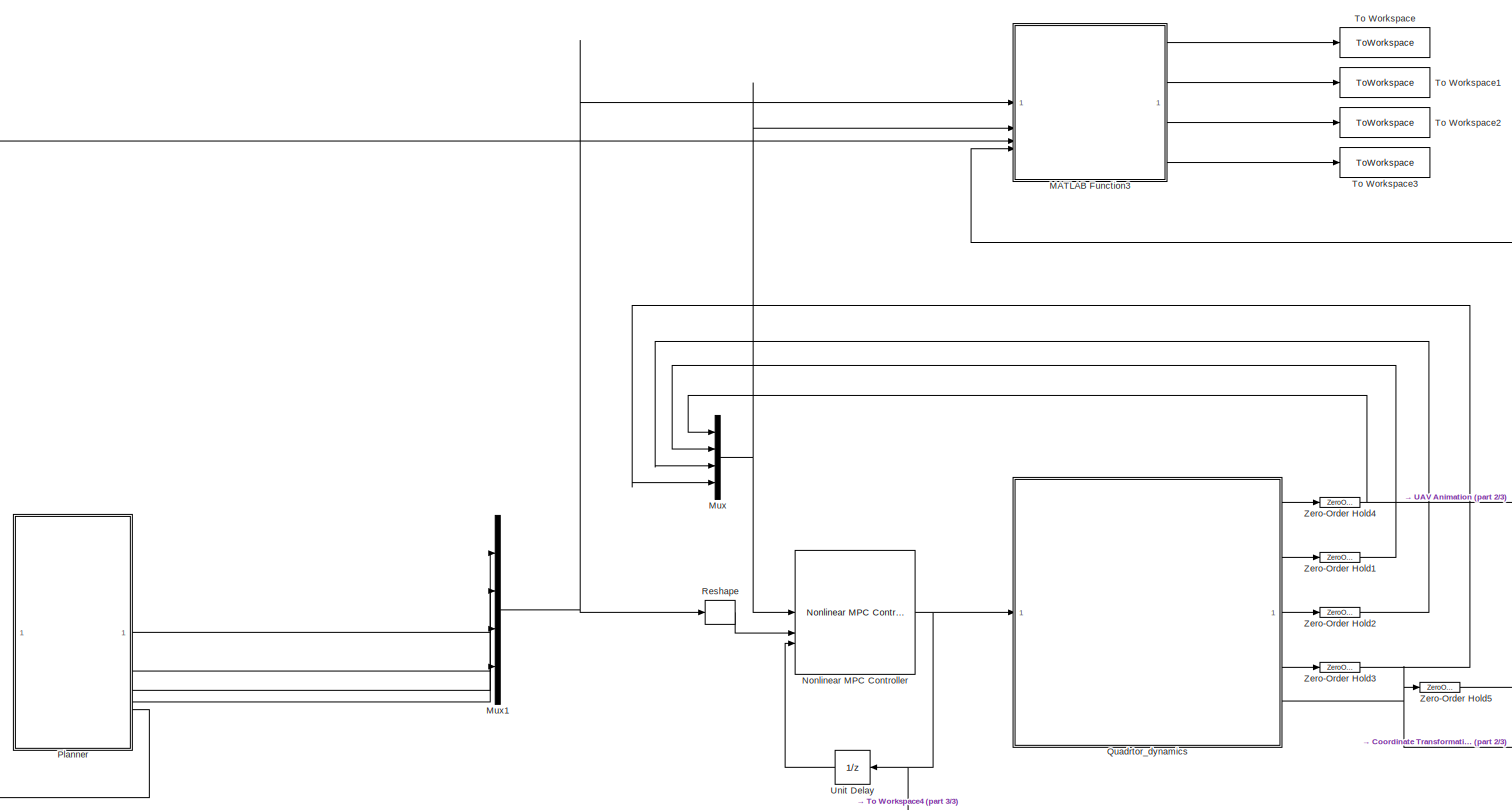
[diagram: root canvas - part 1/3, center side, full height]
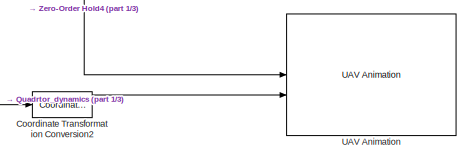
[diagram: root canvas - part 2/3, bottom right region]
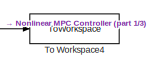
[diagram: root canvas - part 3/3, bottom center region]
MODEL slx_e75ed714f80a
KIND model
CONFIG AbsTol = auto
CONFIG EnableMultiTasking = off
CONFIG FixedStep = auto
CONFIG InitFcn = addpath('TRAJECTORIES\');\nsquare_tilting\n%circular_coplanar
CONFIG MaxStep = auto
CONFIG MinStep = auto
CONFIG PreLoadFcn = mainNMPC
CONFIG RelTol = 1e-3
CONFIG SampleTimeConstraint = Unconstrained
CONFIG SolverName = VariableStepAuto
CONFIG StartFcn = %% Setup Video e Timer\nvideoFile = 'NMPC_quad.avi';\n%videoFile = 'NMPC_circ.avi';\nvideoObj = VideoWriter(videoFile);\nvideoObj.FrameRate = 30;\nopen(videoObj);\nassignin('base','videoObj',videoObj);\n \n \nt = timer('ExecutionMode','fixedSpacing','Period',0.05,'StartDelay',2,...\n          'TimerFcn',@(~,~) captureFrame(findall(0,'Type','figure','Name','UAV Animation'), videoObj));\nstart(t);\n \n \nassignin...<+24ch>
CONFIG StartTime = 0.0
CONFIG StopFcn = % Default graphics settings\nset(0, 'DefaultTextInterpreter', 'latex')\nset(0, 'DefaultLegendInterpreter', 'latex')\nset(0, 'DefaultAxesTickLabelInterpreter', 'latex')\nlw = 2;\nplot_errors = figure('Renderer', 'painters', 'Position', [10 10 900 650]);    \nsubplot(2,1,1)\nplot(out.err_p.time, out.err_p.signals.values(1,:), 'k-', 'Linewidth', lw ,'Color', [0.2, 0.2, 0.2]);\nhold on\nplot(out.err_p.time, ou...<+3073ch>
CONFIG StopTime = tot_time
BLOCK [Reference] Coordinate Transformation Conversion2  REF=robotcorelib/Coordinate Transformation Conversion
  LibrarySourceBlock = robotutilslib/Coordinate Transformation Conversion
  SourceBlock = robotcorelib/Coordinate Transformation Conversion
  SourceType = robotics.slcore.internal.block.CoordinateTransformationConversion
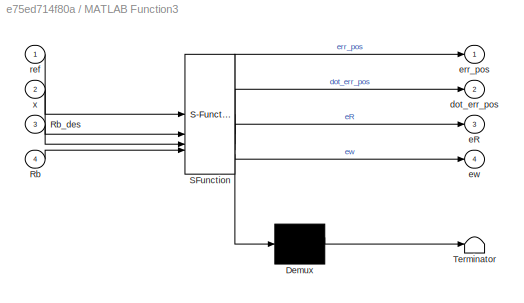
BLOCK [SubSystem] MATLAB Function3
  ErrorFcn = Stateflow.Translate.translate
  PermitHierarchicalResolution = ExplicitOnly
  SFBlockType = MATLAB Function
  TreatAsAtomicUnit = on
BLOCK [Demux] MATLAB Function3/ Demux 
  Outputs = 1
BLOCK [S-Function] MATLAB Function3/ SFunction 
  EnableBusSupport = on
  FunctionName = sf_sfun
  PortCounts = [4 5]
  SFcnIsStateOwnerBlock = off
  SFunctionDeploymentMode = off
  Tag = Stateflow S-Function 1
BLOCK [Terminator] MATLAB Function3/ Terminator 
BLOCK [Inport] MATLAB Function3/Rb
  Port = 4
BLOCK [Inport] MATLAB Function3/Rb_des
  Port = 3
BLOCK [Outport] MATLAB Function3/dot_err_pos
  Port = 2
BLOCK [Outport] MATLAB Function3/eR
  Port = 3
BLOCK [Outport] MATLAB Function3/err_pos
BLOCK [Outport] MATLAB Function3/ew
  Port = 4
BLOCK [Inport] MATLAB Function3/ref
BLOCK [Inport] MATLAB Function3/x
  Port = 2
BLOCK [Mux] Mux
  DisplayOption = bar
  Inputs = [3, 3, 3, 3]
BLOCK [Mux] Mux1
  DisplayOption = bar
  Inputs = [3, 3, 3, 3]
BLOCK [Reference] Nonlinear MPC Controller  REF=mpclib/Nonlinear MPC Controller  (lib defined in mdl_ae329e0e0455)
  SourceBlock = mpclib/Nonlinear MPC Controller
  SourceType = NonlinearMPC
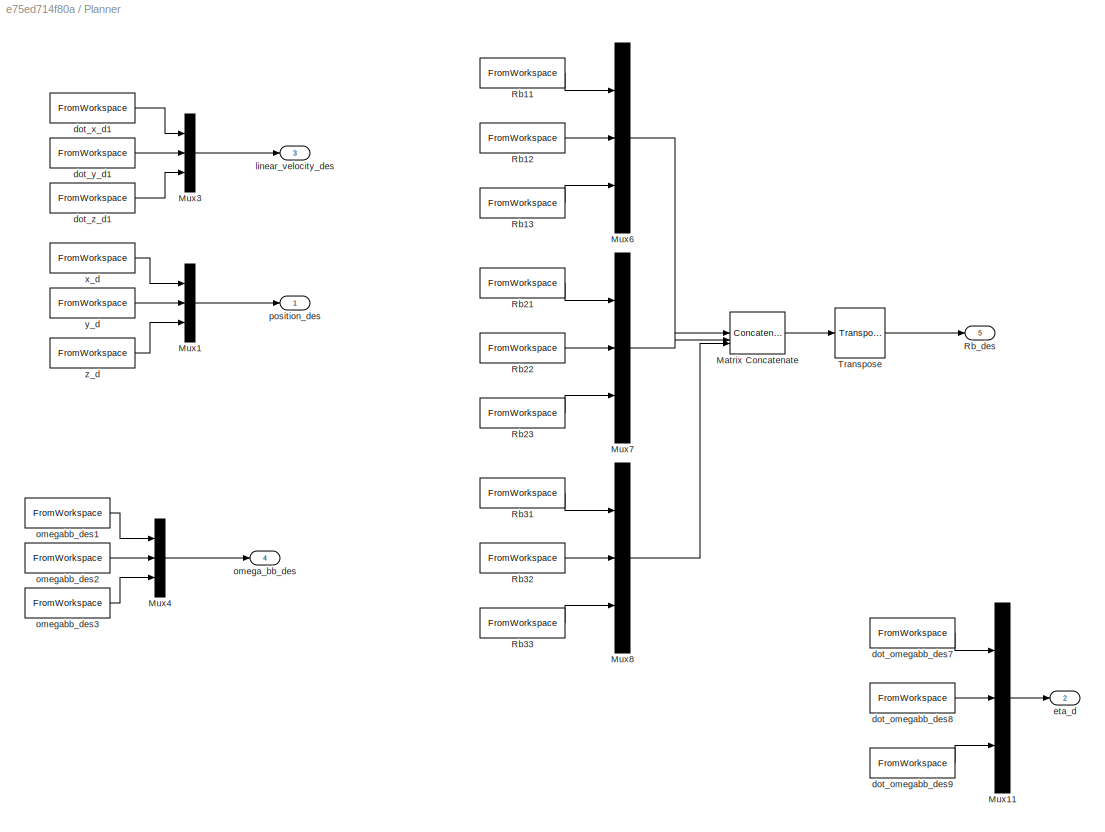
BLOCK [SubSystem] Planner
BLOCK [Concatenate] Planner/Matrix Concatenate
  ConcatenateDimension = 2
  Mode = Multidimensional array
  NumInputs = 3
BLOCK [Mux] Planner/Mux1
  DisplayOption = bar
  Inputs = 3
BLOCK [Mux] Planner/Mux11
  DisplayOption = bar
  Inputs = 3
BLOCK [Mux] Planner/Mux3
  DisplayOption = bar
  Inputs = 3
BLOCK [Mux] Planner/Mux4
  DisplayOption = bar
  Inputs = 3
BLOCK [Mux] Planner/Mux6
  DisplayOption = bar
  Inputs = 3
BLOCK [Mux] Planner/Mux7
  DisplayOption = bar
  Inputs = 3
BLOCK [Mux] Planner/Mux8
  DisplayOption = bar
  Inputs = 3
BLOCK [FromWorkspace] Planner/Rb11
  SampleTime = Ts
  VariableName = [t' squeeze(Rbdes(1,1,:))]
BLOCK [FromWorkspace] Planner/Rb12
  SampleTime = Ts
  VariableName = [t' squeeze(Rbdes(1,2,:))]
BLOCK [FromWorkspace] Planner/Rb13
  SampleTime = Ts
  VariableName = [t' squeeze(Rbdes(1,3,:))]
BLOCK [FromWorkspace] Planner/Rb21
  SampleTime = Ts
  VariableName = [t' squeeze(Rbdes(2,1,:))]
BLOCK [FromWorkspace] Planner/Rb22
  SampleTime = Ts
  VariableName = [t' squeeze(Rbdes(2,2,:))]
BLOCK [FromWorkspace] Planner/Rb23
  SampleTime = Ts
  VariableName = [t' squeeze(Rbdes(2,3,:))]
BLOCK [FromWorkspace] Planner/Rb31
  SampleTime = Ts
  VariableName = [t' squeeze(Rbdes(3,1,:))]
BLOCK [FromWorkspace] Planner/Rb32
  SampleTime = Ts
  VariableName = [t' squeeze(Rbdes(3,2,:))]
BLOCK [FromWorkspace] Planner/Rb33
  SampleTime = Ts
  VariableName = [t' squeeze(Rbdes(3,3,:))]
BLOCK [Outport] Planner/Rb_des
  Port = 5
BLOCK [Reference] Planner/Transpose  REF=matrix_library/Transpose
  LibrarySourceBlock = simulink/Matrix\nOperations/Transpose
  SourceBlock = matrix_library/Transpose
  SourceType = Transpose
BLOCK [FromWorkspace] Planner/dot_omegabb_des7
  SampleTime = Ts
  VariableName = [t' phi_d']
BLOCK [FromWorkspace] Planner/dot_omegabb_des8
  SampleTime = Ts
  VariableName = [t' theta_d']
BLOCK [FromWorkspace] Planner/dot_omegabb_des9
  SampleTime = Ts
  VariableName = [t' psi_d']
BLOCK [FromWorkspace] Planner/dot_x_d1
  SampleTime = Ts
  VariableName = [t' dot_csi_d(1,:)']
BLOCK [FromWorkspace] Planner/dot_y_d1
  SampleTime = Ts
  VariableName = [t' dot_csi_d(2,:)']
BLOCK [FromWorkspace] Planner/dot_z_d1
  SampleTime = Ts
  VariableName = [t' dot_csi_d(3,:)']
BLOCK [Outport] Planner/eta_d
  Port = 2
BLOCK [Outport] Planner/linear_velocity_des
  Port = 3
BLOCK [Outport] Planner/omega_bb_des
  Port = 4
BLOCK [FromWorkspace] Planner/omegabb_des1
  SampleTime = Ts
  VariableName = [t' omegabb_des(1,:)']
BLOCK [FromWorkspace] Planner/omegabb_des2
  SampleTime = Ts
  VariableName = [t' omegabb_des(2,:)']
BLOCK [FromWorkspace] Planner/omegabb_des3
  SampleTime = Ts
  VariableName = [t' omegabb_des(3,:)']
BLOCK [Outport] Planner/position_des
BLOCK [FromWorkspace] Planner/x_d
  SampleTime = Ts
  VariableName = [t' csi_d(1,:)']
BLOCK [FromWorkspace] Planner/y_d
  SampleTime = Ts
  VariableName = [t' csi_d(2,:)']
BLOCK [FromWorkspace] Planner/z_d
  SampleTime = Ts
  VariableName = [t' csi_d(3,:)']
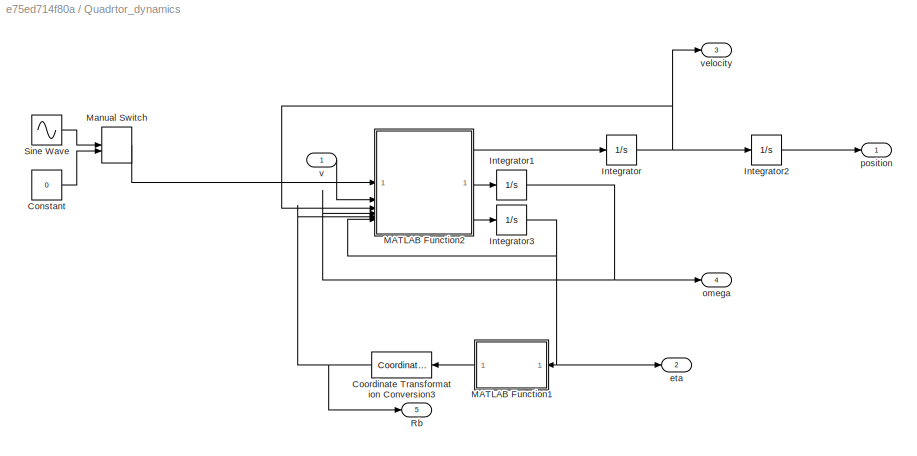
BLOCK [SubSystem] Quadrtor_dynamics
BLOCK [Constant] Quadrtor_dynamics/Constant
  Value = 0
BLOCK [Reference] Quadrtor_dynamics/Coordinate Transformation Conversion3  REF=robotcorelib/Coordinate Transformation Conversion
  LibrarySourceBlock = robotutilslib/Coordinate Transformation Conversion
  NameLocation = top
  SourceBlock = robotcorelib/Coordinate Transformation Conversion
  SourceType = robotics.slcore.internal.block.CoordinateTransformationConversion
BLOCK [Integrator] Quadrtor_dynamics/Integrator
  InitialCondition = [0 0 0]'
BLOCK [Integrator] Quadrtor_dynamics/Integrator1
  InitialCondition = [0 0 0]'
BLOCK [Integrator] Quadrtor_dynamics/Integrator2
  InitialCondition = [0 0 -1]'
BLOCK [Integrator] Quadrtor_dynamics/Integrator3
  InitialCondition = [0 0 0]'
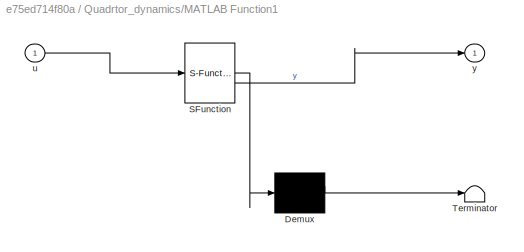
BLOCK [SubSystem] Quadrtor_dynamics/MATLAB Function1
  ErrorFcn = Stateflow.Translate.translate
  NameLocation = top
  PermitHierarchicalResolution = ExplicitOnly
  SFBlockType = MATLAB Function
  TreatAsAtomicUnit = on
BLOCK [Demux] Quadrtor_dynamics/MATLAB Function1/ Demux 
  Outputs = 1
BLOCK [S-Function] Quadrtor_dynamics/MATLAB Function1/ SFunction 
  EnableBusSupport = on
  FunctionName = sf_sfun
  PortCounts = [1 2]
  SFcnIsStateOwnerBlock = off
  SFunctionDeploymentMode = off
  Tag = Stateflow S-Function 2
BLOCK [Terminator] Quadrtor_dynamics/MATLAB Function1/ Terminator 
BLOCK [Inport] Quadrtor_dynamics/MATLAB Function1/u
BLOCK [Outport] Quadrtor_dynamics/MATLAB Function1/y
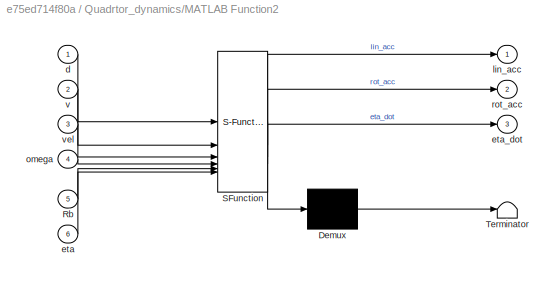
BLOCK [SubSystem] Quadrtor_dynamics/MATLAB Function2
  ErrorFcn = Stateflow.Translate.translate
  PermitHierarchicalResolution = ExplicitOnly
  SFBlockType = MATLAB Function
  TreatAsAtomicUnit = on
BLOCK [Demux] Quadrtor_dynamics/MATLAB Function2/ Demux 
  Outputs = 1
BLOCK [S-Function] Quadrtor_dynamics/MATLAB Function2/ SFunction 
  EnableBusSupport = on
  FunctionName = sf_sfun
  PortCounts = [6 4]
  SFcnIsStateOwnerBlock = off
  SFunctionDeploymentMode = off
  Tag = Stateflow S-Function 5
BLOCK [Terminator] Quadrtor_dynamics/MATLAB Function2/ Terminator 
BLOCK [Inport] Quadrtor_dynamics/MATLAB Function2/Rb
  Port = 5
BLOCK [Inport] Quadrtor_dynamics/MATLAB Function2/d
BLOCK [Inport] Quadrtor_dynamics/MATLAB Function2/eta
  Port = 6
BLOCK [Outport] Quadrtor_dynamics/MATLAB Function2/eta_dot
  Port = 3
BLOCK [Outport] Quadrtor_dynamics/MATLAB Function2/lin_acc
BLOCK [Inport] Quadrtor_dynamics/MATLAB Function2/omega
  Port = 4
BLOCK [Outport] Quadrtor_dynamics/MATLAB Function2/rot_acc
  Port = 2
BLOCK [Inport] Quadrtor_dynamics/MATLAB Function2/v
  Port = 2
BLOCK [Inport] Quadrtor_dynamics/MATLAB Function2/vel
  Port = 3
BLOCK [ManualSwitch] Quadrtor_dynamics/Manual Switch
  CurrentSetting = 0
BLOCK [Outport] Quadrtor_dynamics/Rb
  Port = 5
BLOCK [Sin] Quadrtor_dynamics/Sine Wave
  Frequency = 0.2
  SampleTime = 0
BLOCK [Outport] Quadrtor_dynamics/eta
  Port = 2
BLOCK [Outport] Quadrtor_dynamics/omega
  Port = 4
BLOCK [Outport] Quadrtor_dynamics/position
BLOCK [Inport] Quadrtor_dynamics/v
BLOCK [Outport] Quadrtor_dynamics/velocity
  Port = 3
BLOCK [Reshape] Reshape
  OutputDimensionality = Row vector (2-D)
  OutputDimensions = [1,12]
BLOCK [ToWorkspace] To Workspace
  FixptAsFi = on
  MaxDataPoints = inf
  SampleTime = -1
  SaveFormat = Structure With Time
  VariableName = err_p
BLOCK [ToWorkspace] To Workspace1
  FixptAsFi = on
  MaxDataPoints = inf
  SampleTime = -1
  SaveFormat = Structure With Time
  VariableName = dot_err_p
BLOCK [ToWorkspace] To Workspace2
  FixptAsFi = on
  MaxDataPoints = inf
  SampleTime = -1
  SaveFormat = Structure With Time
  VariableName = eR
BLOCK [ToWorkspace] To Workspace3
  FixptAsFi = on
  MaxDataPoints = inf
  SampleTime = -1
  SaveFormat = Structure With Time
  VariableName = ew
BLOCK [ToWorkspace] To Workspace4
  FixptAsFi = on
  MaxDataPoints = inf
  SampleTime = -1
  SaveFormat = Structure With Time
  VariableName = v
BLOCK [Reference] UAV Animation  REF=uavutilslib/UAV Animation
  SourceBlock = uavutilslib/UAV Animation
  SourceType = uav.sluav.internal.system.UAVAnimation
BLOCK [UnitDelay] Unit Delay
  HasFrameUpgradeWarning = on
  InitialCondition = [0 0 -13 0 0 0]'
  NameLocation = top
  SampleTime = Ts
BLOCK [ZeroOrderHold] Zero-Order Hold1
  SampleTime = Ts
BLOCK [ZeroOrderHold] Zero-Order Hold2
  SampleTime = Ts
BLOCK [ZeroOrderHold] Zero-Order Hold3
  SampleTime = Ts
BLOCK [ZeroOrderHold] Zero-Order Hold4
  SampleTime = Ts
BLOCK [ZeroOrderHold] Zero-Order Hold5
  SampleTime = Ts
LINE Coordinate Transformation Conversion2:1 -> UAV Animation:2
LINE MATLAB Function3:1 -> To Workspace:1
LINE MATLAB Function3:2 -> To Workspace1:1
LINE MATLAB Function3:3 -> To Workspace2:1
LINE MATLAB Function3:4 -> To Workspace3:1
NET Mux1:1 -> MATLAB Function3:1, Reshape:1
NET Mux:1 -> MATLAB Function3:2, Nonlinear MPC Controller:1
NET Nonlinear MPC Controller:1 -> Quadrtor_dynamics:1, To Workspace4:1, Unit Delay:1
LINE Planner/Matrix Concatenate:1 -> Planner/Transpose:1
LINE Planner/Mux11:1 -> Planner/eta_d:1
LINE Planner/Mux1:1 -> Planner/position_des:1
LINE Planner/Mux3:1 -> Planner/linear_velocity_des:1
LINE Planner/Mux4:1 -> Planner/omega_bb_des:1
LINE Planner/Mux6:1 -> Planner/Matrix Concatenate:1
LINE Planner/Mux7:1 -> Planner/Matrix Concatenate:2
LINE Planner/Mux8:1 -> Planner/Matrix Concatenate:3
LINE Planner/Rb11:1 -> Planner/Mux6:1
LINE Planner/Rb12:1 -> Planner/Mux6:2
LINE Planner/Rb13:1 -> Planner/Mux6:3
LINE Planner/Rb21:1 -> Planner/Mux7:1
LINE Planner/Rb22:1 -> Planner/Mux7:2
LINE Planner/Rb23:1 -> Planner/Mux7:3
LINE Planner/Rb31:1 -> Planner/Mux8:1
LINE Planner/Rb32:1 -> Planner/Mux8:2
LINE Planner/Rb33:1 -> Planner/Mux8:3
LINE Planner/Transpose:1 -> Planner/Rb_des:1
LINE Planner/dot_omegabb_des7:1 -> Planner/Mux11:1
LINE Planner/dot_omegabb_des8:1 -> Planner/Mux11:2
LINE Planner/dot_omegabb_des9:1 -> Planner/Mux11:3
LINE Planner/dot_x_d1:1 -> Planner/Mux3:1
LINE Planner/dot_y_d1:1 -> Planner/Mux3:2
LINE Planner/dot_z_d1:1 -> Planner/Mux3:3
LINE Planner/omegabb_des1:1 -> Planner/Mux4:1
LINE Planner/omegabb_des2:1 -> Planner/Mux4:2
LINE Planner/omegabb_des3:1 -> Planner/Mux4:3
LINE Planner/x_d:1 -> Planner/Mux1:1
LINE Planner/y_d:1 -> Planner/Mux1:2
LINE Planner/z_d:1 -> Planner/Mux1:3
LINE Planner:1 -> Mux1:1
LINE Planner:2 -> Mux1:2
LINE Planner:3 -> Mux1:3
LINE Planner:4 -> Mux1:4
LINE Planner:5 -> MATLAB Function3:3
LINE Quadrtor_dynamics/Constant:1 -> Quadrtor_dynamics/Manual Switch:2
NET Quadrtor_dynamics/Coordinate Transformation Conversion3:1 -> Quadrtor_dynamics/MATLAB Function2:5, Quadrtor_dynamics/Rb:1
NET Quadrtor_dynamics/Integrator1:1 -> Quadrtor_dynamics/MATLAB Function2:4, Quadrtor_dynamics/omega:1
LINE Quadrtor_dynamics/Integrator2:1 -> Quadrtor_dynamics/position:1
NET Quadrtor_dynamics/Integrator3:1 -> Quadrtor_dynamics/MATLAB Function1:1, Quadrtor_dynamics/MATLAB Function2:6, Quadrtor_dynamics/eta:1
NET Quadrtor_dynamics/Integrator:1 -> Quadrtor_dynamics/Integrator2:1, Quadrtor_dynamics/MATLAB Function2:3, Quadrtor_dynamics/velocity:1
LINE Quadrtor_dynamics/MATLAB Function1:1 -> Quadrtor_dynamics/Coordinate Transformation Conversion3:1
LINE Quadrtor_dynamics/MATLAB Function2:1 -> Quadrtor_dynamics/Integrator:1
LINE Quadrtor_dynamics/MATLAB Function2:2 -> Quadrtor_dynamics/Integrator1:1
LINE Quadrtor_dynamics/MATLAB Function2:3 -> Quadrtor_dynamics/Integrator3:1
LINE Quadrtor_dynamics/Manual Switch:1 -> Quadrtor_dynamics/MATLAB Function2:1
LINE Quadrtor_dynamics/Sine Wave:1 -> Quadrtor_dynamics/Manual Switch:1
LINE Quadrtor_dynamics/v:1 -> Quadrtor_dynamics/MATLAB Function2:2
LINE Quadrtor_dynamics:1 -> Zero-Order Hold4:1
LINE Quadrtor_dynamics:2 -> Zero-Order Hold1:1
LINE Quadrtor_dynamics:3 -> Zero-Order Hold2:1
LINE Quadrtor_dynamics:4 -> Zero-Order Hold3:1
NET Quadrtor_dynamics:5 -> Coordinate Transformation Conversion2:1, Zero-Order Hold5:1
LINE Reshape:1 -> Nonlinear MPC Controller:2
LINE Unit Delay:1 -> Nonlinear MPC Controller:3
LINE Zero-Order Hold1:1 -> Mux:2
LINE Zero-Order Hold2:1 -> Mux:3
LINE Zero-Order Hold3:1 -> Mux:4
NET Zero-Order Hold4:1 -> Mux:1, UAV Animation:1
LINE Zero-Order Hold5:1 -> MATLAB Function3:4
note: NET lines group one-source signal fan-out (src -> all destinations, sorted); 1:1 wires keep LINE
CHART MATLAB Function3 states=1 transitions=1
  STATE_LABEL 'eML_blk_kernel()'
  STATE_LABEL "SCRIPT:\nfunction [err_pos,dot_err_pos, eR, ew] = compute_errors(ref,x,Rb_des,Rb)\n    pos = x(1:3);\n    eta = x(4:6);\n    vel = x(7:9);\n    omega = x(10:12);\n\n    pos_des = ref(1:3);\n    eta_des = ref(4:6);\n    vel_des = ref(7:9);\n    omega_des = ref(10:12);\n    \n    %Compute errors\n    err_pos = pos - pos_des;\n    dot_err_pos = vel - vel_des;\n\n    eR = 0.5*vee(Rb_des'*Rb - Rb'*Rb_des);\n    ew = om...<+243ch>"
CHART Quadrtor_dynamics/MATLAB Function1 states=1 transitions=1
  STATE_LABEL 'eML_blk_kernel()'
  STATE_LABEL "SCRIPT:\nfunction y = fcn(u)\n\ny = [u(3) u(2) u(1)]';\n"
CHART Quadrtor_dynamics/MATLAB Function2 states=1 transitions=1
  STATE_LABEL 'eML_blk_kernel()'
  STATE_LABEL "SCRIPT:\nfunction [lin_acc, rot_acc, eta_dot] = fcn(d,v, vel,omega, Rb, eta)\n\ng = [0 0 9.81]';\nm = 1.32;\nAT = diag([0.9 0.9 0.75]);\nAR = diag([0.6 0.6 0.6]);\nJ = diag([0.0154 0.0154 0.0263]);\n\nH = [1 sin(eta(1))*tan(eta(2)) cos(eta(1))*tan(eta(2));\n     0 cos(eta(1)) -sin(eta(1));\n     0 sin(eta(1))/cos(eta(2)) cos(eta(1))/cos(eta(2))];\n\neta_dot=H*omega;\n\nprod_vec = [-omega(2)*omega(3)*(J(3,3)-J(2,...<+402ch>"
CHART  states=0 transitions=0
CHART  states=0 transitions=0
CHART  states=0 transitions=0
